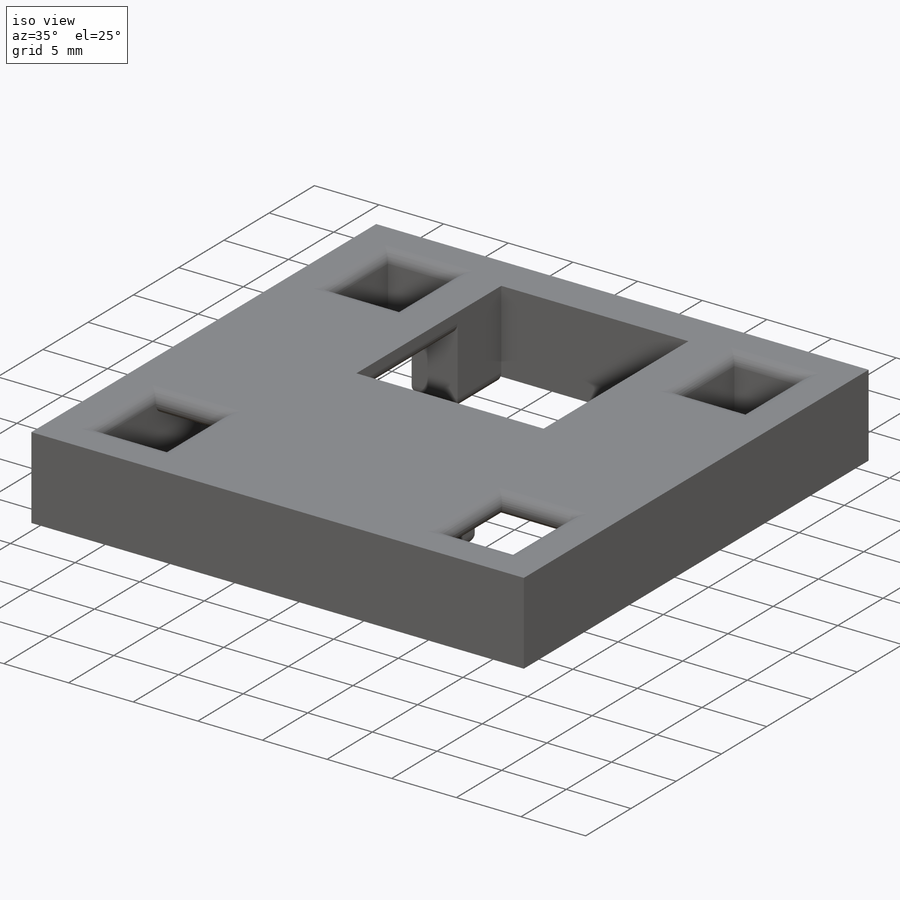
[diagram: iso view]
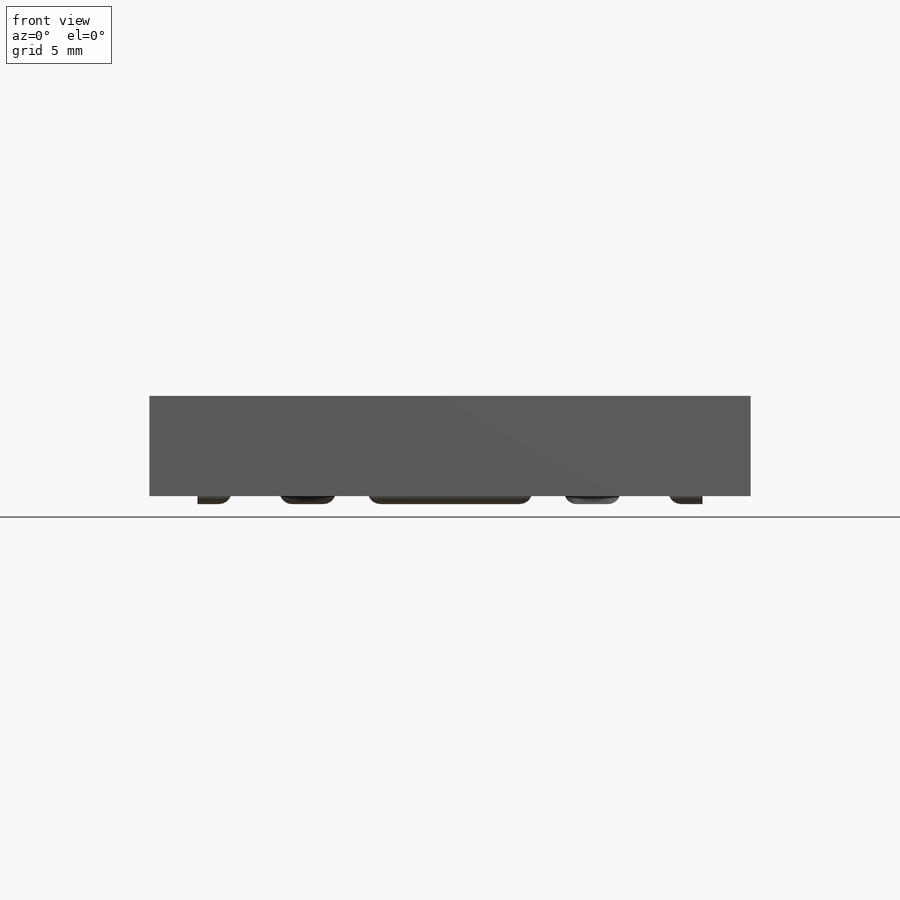
[diagram: front view]
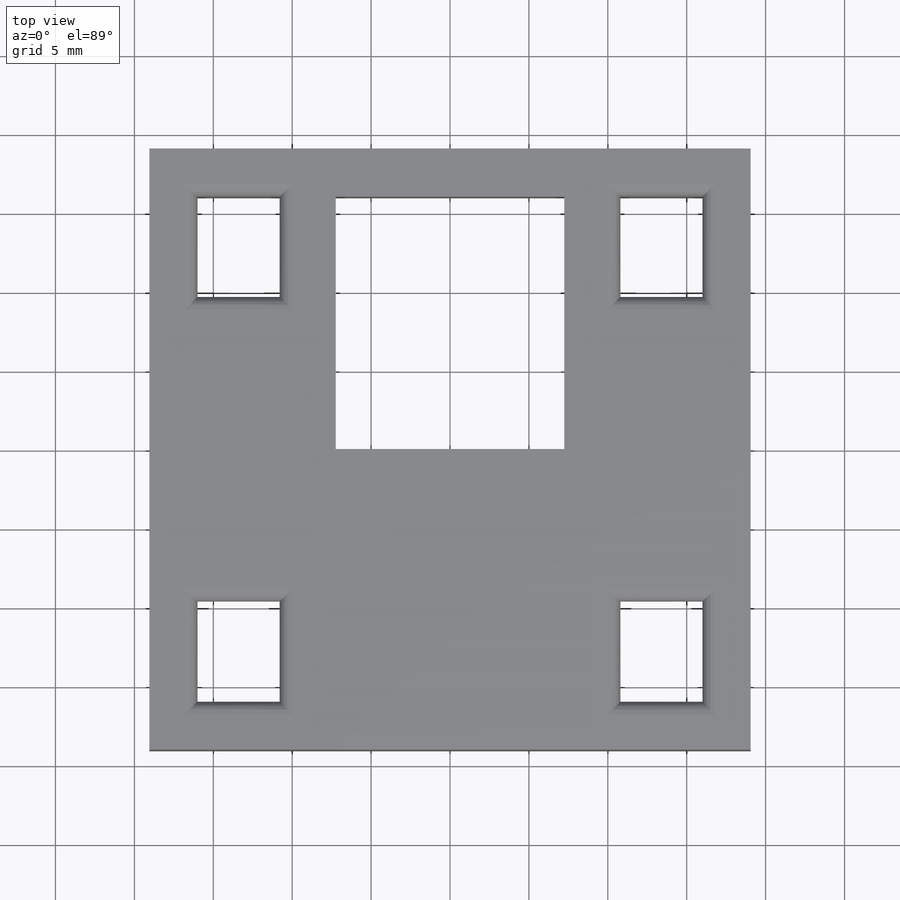
[diagram: top view]
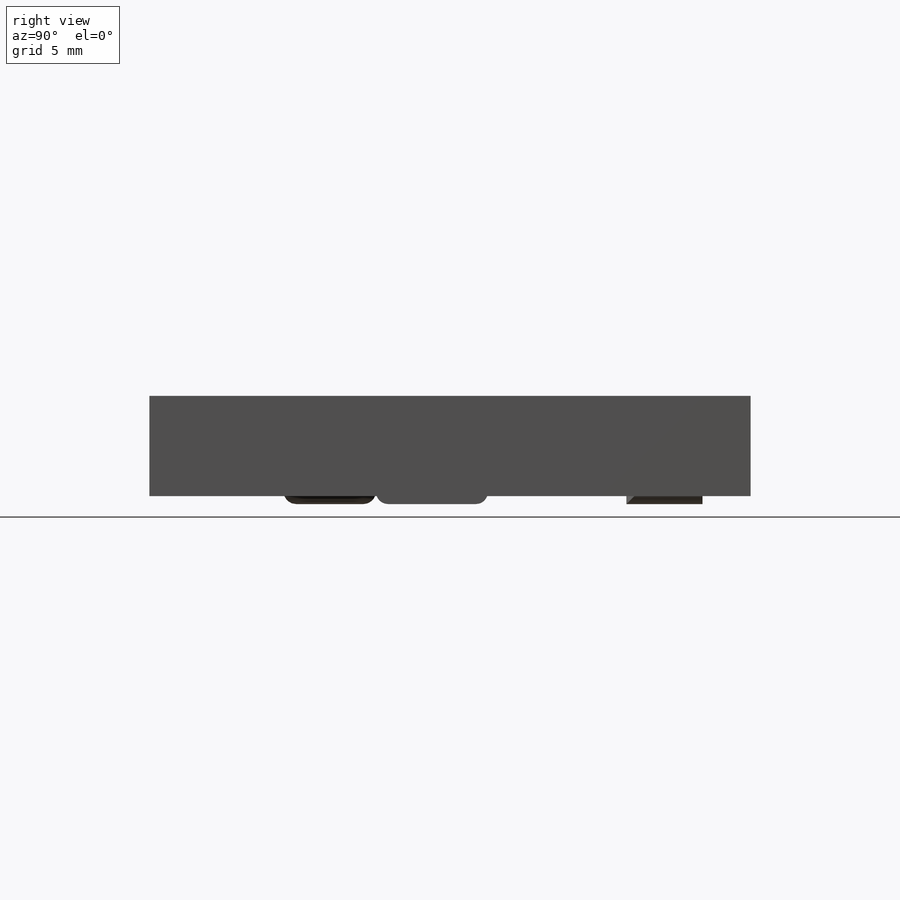
[diagram: right view]
SOLIDWORKS PART (.sldprt)
format: sldprt  version: not decoded by parser v0  size: 458,752 bytes
history: native  units: mm
features: sketch x4, extrude x3, fillet x2, material x1, cut_extrude x1 (+12 scaffold rows collapsed)
feature tree (23):
  scaffold x12  (default folders/planes/origin — collapsed)
  material  "Material <not specified>"
  sketch  "Sketch1"  dims[D1=32.004mm D2=32.004mm D3=5.207mm D4=8.763mm D5=4.826mm D6=5.207mm D7=8.763mm D8=4.826mm D9=2.159mm D10=2.159mm D11=11.303mm D12=11.303mm D13=7.112mm D14=7.112mm D15=10.795mm D16=10.795mm D17=5.461mm D18=11.303mm]
  extrude  "Boss-Extrude1"  Depth=5.2705mm
  extrude  "Boss-Extrude2"  [1 undecoded]
  sketch  "Sketch1<3>"  dims[D1=1.5875mm]
  sketch  "Sketch2"  dims[D1=6.35mm D2=6.35mm D3=5.207mm D4=6.35mm D5=6.35mm D6=5.207mm D7=16.002mm]
  cut_extrude  "Cut-Extrude1"  Depth=1.5875mm
  sketch  "Sketch3"  dims[D1=32.004mm D2=32.004mm D3=3.048mm]
  extrude  "Boss-Extrude4"  Depth=6.35mm
  fillet  "Fillet45"  Radius=0.79375mm
  fillet  "Fillet47"  Radius=0.79375mm
decode coverage: 9 of 10 modeling features carry decoded parameters
note: 1 parameter value undecoded
note: suppression state not decoded; provenance and decode notes live in map.json
